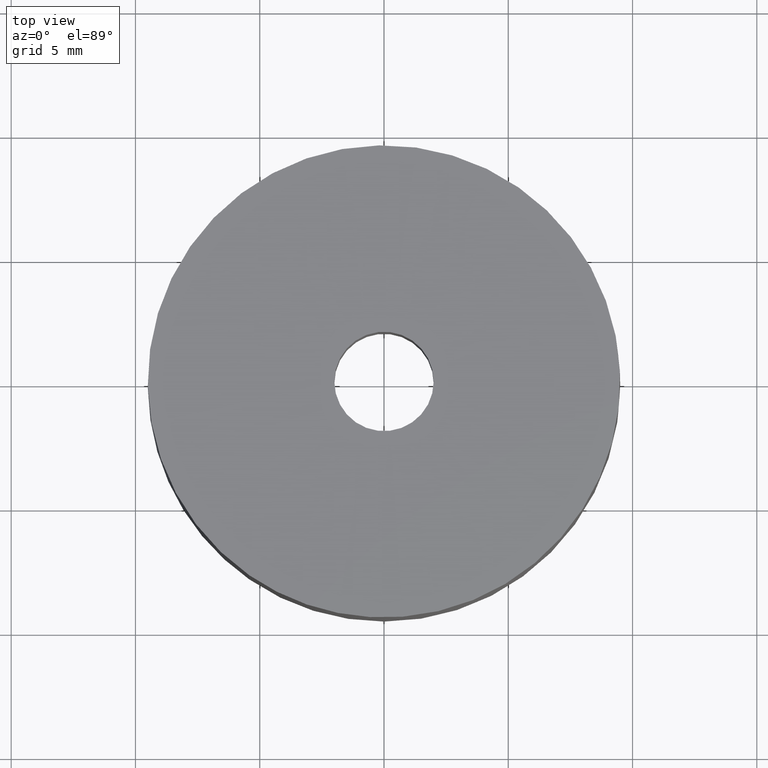
[diagram: clean part render]
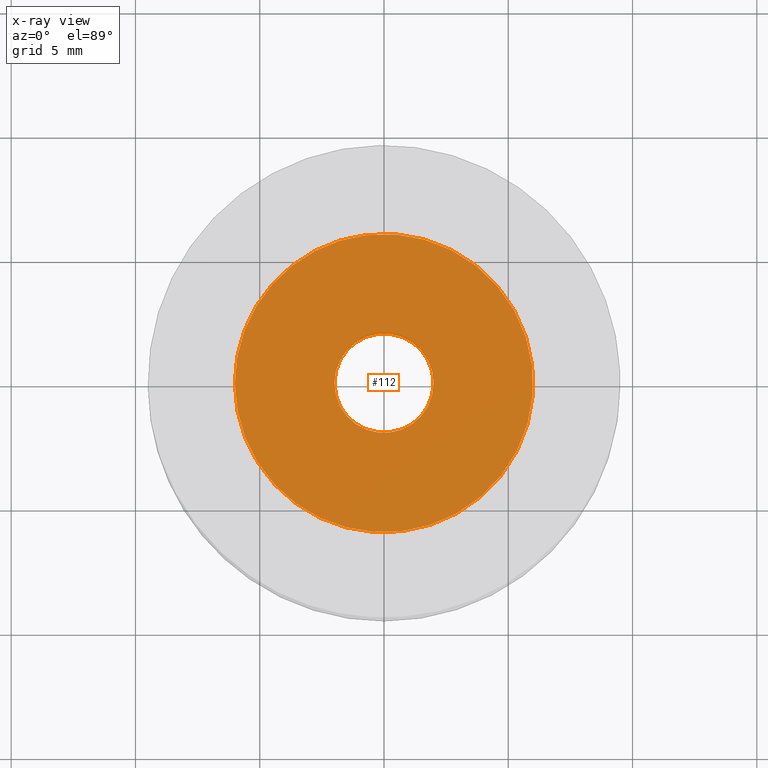
[diagram: x-ray — body ghosted, one internal face saturated and labeled with its STEP entity id]
A machine part, top view, then the same camera in x-ray: the body is ghosted and one INTERNAL B-rep face — a face not visible from any outside direction — is saturated and labeled: STEP entity #112.
In plain terms, the highlighted planar face has unit normal (0, 0, -1).
Its self-contained STEP definition (entity closure, byte-faithful):
#112=ADVANCED_FACE('',(#133,#134),#132,.F.);
#132=PLANE('',#341);
#133=FACE_OUTER_BOUND('',#342,.T.);
#134=FACE_BOUND('',#343,.T.);
#338=CARTESIAN_POINT('',(1.38000000000E+001,-1.24707658145E+001,7.80000000000E+000));
#339=DIRECTION('',(0.00000000000E+000,0.00000000000E+000,-1.00000000000E+000));
#340=DIRECTION('',(-1.00000000000E+000,0.00000000000E+000,0.00000000000E+000));
#341=AXIS2_PLACEMENT_3D('',#338,#339,#340);
#342=EDGE_LOOP('',(#486,#487,#488));
#343=EDGE_LOOP('',(#489,#490,#491));
#486=ORIENTED_EDGE('',*,*,#602,.F.);
#487=ORIENTED_EDGE('',*,*,#603,.F.);
#488=ORIENTED_EDGE('',*,*,#604,.F.);
#489=ORIENTED_EDGE('',*,*,#605,.T.);
#490=ORIENTED_EDGE('',*,*,#606,.T.);
#491=ORIENTED_EDGE('',*,*,#607,.T.);
#602=EDGE_CURVE('',#660,#661,#662,.T.);
#603=EDGE_CURVE('',#668,#660,#669,.T.);
#604=EDGE_CURVE('',#661,#668,#675,.T.);
#605=EDGE_CURVE('',#681,#682,#683,.T.);
#606=EDGE_CURVE('',#682,#689,#690,.T.);
#607=EDGE_CURVE('',#689,#681,#696,.T.);
#660=VERTEX_POINT('',#1052);
#661=VERTEX_POINT('',#1053);
#662=CIRCLE('',#1057,6.00000000000E+000);
#668=VERTEX_POINT('',#1058);
#669=CIRCLE('',#1062,6.00000000000E+000);
#675=CIRCLE('',#1066,6.00000000000E+000);
#681=VERTEX_POINT('',#1067);
#682=VERTEX_POINT('',#1068);
#683=CIRCLE('',#1072,2.00000000000E+000);
#689=VERTEX_POINT('',#1073);
#690=CIRCLE('',#1077,2.00000000000E+000);
#696=CIRCLE('',#1081,2.00000000000E+000);
#1052=CARTESIAN_POINT('',(7.08205350219E-001,-5.95805716504E+000,7.80000000000E+000));
#1053=CARTESIAN_POINT('',(-6.00000000000E+000,5.55111512313E-016,7.80000000000E+000));
#1054=CARTESIAN_POINT('',(1.21236354289E-013,5.63993296510E-014,7.80000000000E+000));
#1055=DIRECTION('',(4.90179757309E-015,1.32801122831E-015,-1.00000000000E+000));
#1056=DIRECTION('',(-1.00000000000E+000,-8.95117313604E-015,-4.90179757309E-015));
#1057=AXIS2_PLACEMENT_3D('',#1054,#1055,#1056);
#1058=CARTESIAN_POINT('',(-7.09235160270E-001,5.95793466626E+000,7.80000000000E+000));
#1059=CARTESIAN_POINT('',(1.21236354289E-013,5.63993296510E-014,7.80000000000E+000));
#1060=DIRECTION('',(4.90179757309E-015,1.32801122831E-015,-1.00000000000E+000));
#1061=DIRECTION('',(-1.00000000000E+000,-8.95117313604E-015,-4.90179757309E-015));
#1062=AXIS2_PLACEMENT_3D('',#1059,#1060,#1061);
#1063=CARTESIAN_POINT('',(1.21236354289E-013,5.63993296510E-014,7.80000000000E+000));
#1064=DIRECTION('',(4.90179757309E-015,1.32801122831E-015,-1.00000000000E+000));
#1065=DIRECTION('',(-1.00000000000E+000,-8.95117313604E-015,-4.90179757309E-015));
#1066=AXIS2_PLACEMENT_3D('',#1063,#1064,#1065);
#1067=CARTESIAN_POINT('',(-1.99999999999E+000,-2.44921272664E-016,7.80000000000E+000));
#1068=CARTESIAN_POINT('',(-2.36410143219E-001,1.98597840979E+000,7.80000000000E+000));
#1069=CARTESIAN_POINT('',(3.49453799231E-012,-5.43565192856E-013,7.80000000000E+000));
#1070=DIRECTION('',(-8.88178419702E-016,0.00000000000E+000,-1.00000000000E+000));
#1071=DIRECTION('',(-1.00000000000E+000,2.71782596428E-013,8.88178419702E-016));
#1072=AXIS2_PLACEMENT_3D('',#1069,#1070,#1071);
#1073=CARTESIAN_POINT('',(2.36066404379E-001,-1.98601929817E+000,7.80000000000E+000));
#1074=CARTESIAN_POINT('',(3.49453799231E-012,-5.43565192856E-013,7.80000000000E+000));
#1075=DIRECTION('',(-8.88178419702E-016,0.00000000000E+000,-1.00000000000E+000));
#1076=DIRECTION('',(-1.00000000000E+000,2.71782596428E-013,8.88178419702E-016));
#1077=AXIS2_PLACEMENT_3D('',#1074,#1075,#1076);
#1078=CARTESIAN_POINT('',(3.49453799231E-012,-5.43565192856E-013,7.80000000000E+000));
#1079=DIRECTION('',(-8.88178419702E-016,0.00000000000E+000,-1.00000000000E+000));
#1080=DIRECTION('',(-1.00000000000E+000,2.71782596428E-013,8.88178419702E-016));
#1081=AXIS2_PLACEMENT_3D('',#1078,#1079,#1080);